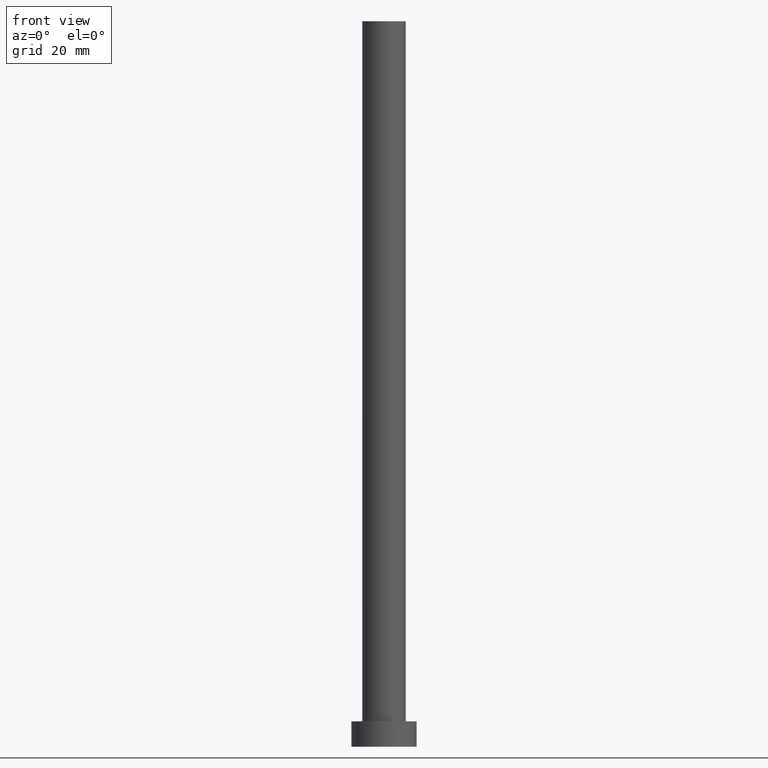
[diagram: clean part render]
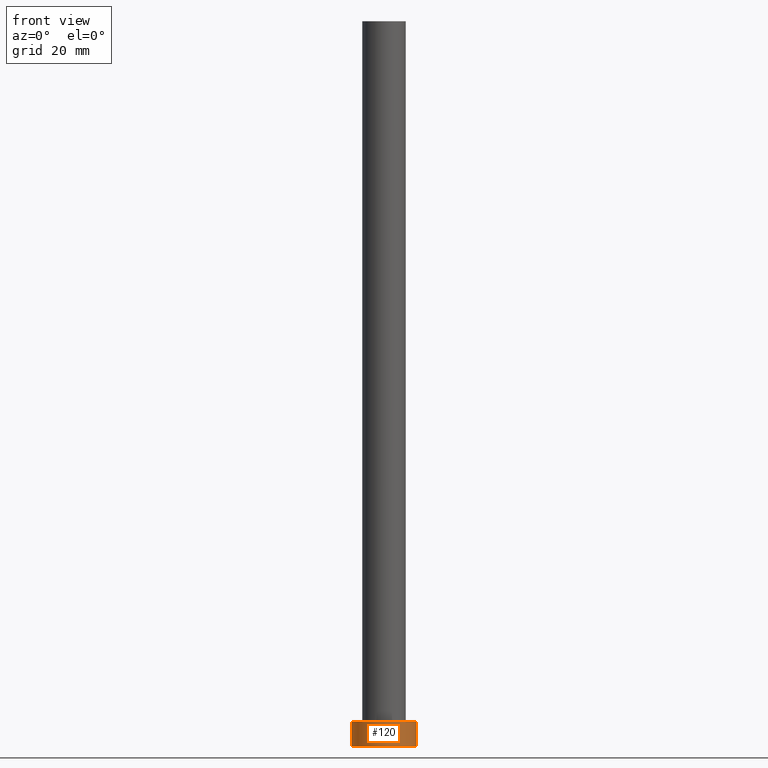
[diagram: same view with one face highlighted and labeled with its STEP entity id]
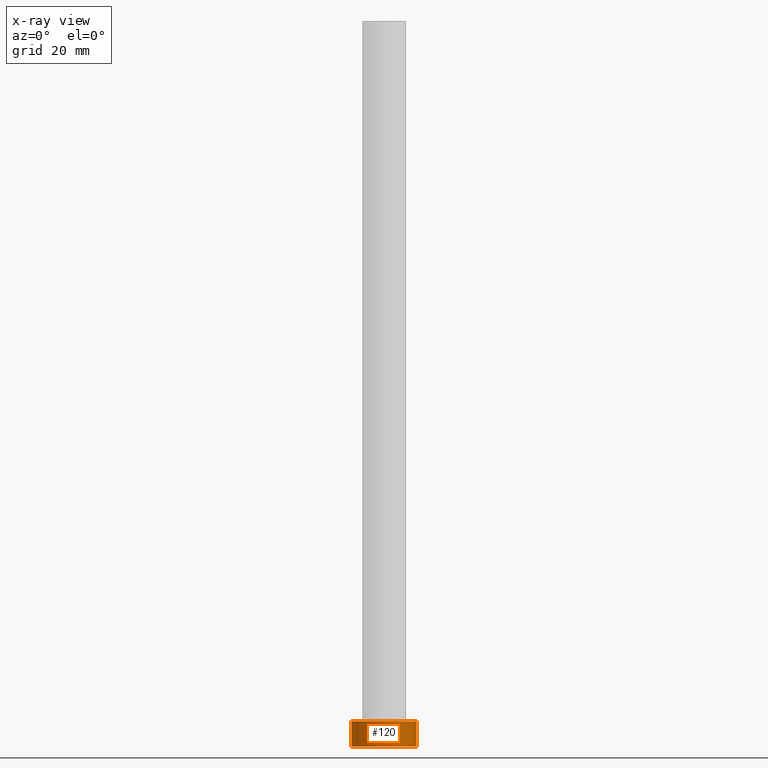
[diagram: x-ray of the same camera — body ghosted, the highlighted face saturated]
A machine part, front view. The second image highlights one B-rep face of the part: STEP entity #120.
The next image is the same camera in x-ray: the body ghosted, the highlighted face saturated — about 0% of this face is hidden behind the body in this view.
In plain terms, the highlighted cylindrical surface (edge-blend (fillet) strip) has radius 9 mm, axis along (-0, -0, -1).
Its self-contained STEP definition (entity closure, byte-faithful):
#26 = AXIS2_PLACEMENT_3D ( 'NONE', #236, #89, #237 ) ;
#27 = EDGE_CURVE ( 'NONE', #211, #83, #106, .T. ) ;
#35 = CARTESIAN_POINT ( 'NONE',  ( -9.000000000000000000, 0.000000000000000000, 7.000000000000000000 ) ) ;
#53 = ORIENTED_EDGE ( 'NONE', *, *, #190, .T. ) ;
#55 = AXIS2_PLACEMENT_3D ( 'NONE', #207, #246, #162 ) ;
#56 = CARTESIAN_POINT ( 'NONE',  ( -9.000000000000000000, 0.000000000000000000, 7.000000000000000000 ) ) ;
#60 = FACE_OUTER_BOUND ( 'NONE', #200, .T. ) ;
#68 = CARTESIAN_POINT ( 'NONE',  ( 9.000000000000000000, 1.102182119232617714E-15, 7.000000000000000000 ) ) ;
#69 = EDGE_CURVE ( 'NONE', #83, #222, #88, .T. ) ;
#71 = ORIENTED_EDGE ( 'NONE', *, *, #27, .F. ) ;
#83 = VERTEX_POINT ( 'NONE', #68 ) ;
#86 = CARTESIAN_POINT ( 'NONE',  ( 9.000000000000000000, 1.102182119232617714E-15, 7.000000000000000000 ) ) ;
#88 = LINE ( 'NONE', #86, #192 ) ;
#89 = DIRECTION ( 'NONE',  ( 0.000000000000000000, 0.000000000000000000, 1.000000000000000000 ) ) ;
#106 = CIRCLE ( 'NONE', #26, 9.000000000000000000 ) ;
#108 = CIRCLE ( 'NONE', #219, 9.000000000000000000 ) ;
#110 = DIRECTION ( 'NONE',  ( 1.000000000000000000, 0.000000000000000000, 0.000000000000000000 ) ) ;
#120 = ADVANCED_FACE ( 'NONE', ( #60 ), #159, .T. ) ;
#122 = VECTOR ( 'NONE', #141, 1000.000000000000000 ) ;
#126 = CARTESIAN_POINT ( 'NONE',  ( 0.000000000000000000, 0.000000000000000000, 0.000000000000000000 ) ) ;
#141 = DIRECTION ( 'NONE',  ( -0.000000000000000000, -0.000000000000000000, -1.000000000000000000 ) ) ;
#143 = LINE ( 'NONE', #35, #122 ) ;
#159 = CYLINDRICAL_SURFACE ( 'NONE', #55, 9.000000000000000000 ) ;
#162 = DIRECTION ( 'NONE',  ( -1.000000000000000000, 0.000000000000000000, 0.000000000000000000 ) ) ;
#168 = ORIENTED_EDGE ( 'NONE', *, *, #252, .T. ) ;
#190 = EDGE_CURVE ( 'NONE', #211, #202, #143, .T. ) ;
#191 = DIRECTION ( 'NONE',  ( -0.000000000000000000, -0.000000000000000000, -1.000000000000000000 ) ) ;
#192 = VECTOR ( 'NONE', #191, 1000.000000000000000 ) ;
#196 = CARTESIAN_POINT ( 'NONE',  ( 9.000000000000000000, 1.102182119232617714E-15, 0.000000000000000000 ) ) ;
#200 = EDGE_LOOP ( 'NONE', ( #247, #71, #53, #168 ) ) ;
#202 = VERTEX_POINT ( 'NONE', #244 ) ;
#207 = CARTESIAN_POINT ( 'NONE',  ( 0.000000000000000000, 0.000000000000000000, 7.000000000000000000 ) ) ;
#211 = VERTEX_POINT ( 'NONE', #56 ) ;
#219 = AXIS2_PLACEMENT_3D ( 'NONE', #126, #248, #110 ) ;
#222 = VERTEX_POINT ( 'NONE', #196 ) ;
#236 = CARTESIAN_POINT ( 'NONE',  ( 0.000000000000000000, 0.000000000000000000, 7.000000000000000000 ) ) ;
#237 = DIRECTION ( 'NONE',  ( 1.000000000000000000, 0.000000000000000000, 0.000000000000000000 ) ) ;
#244 = CARTESIAN_POINT ( 'NONE',  ( -9.000000000000000000, 0.000000000000000000, 0.000000000000000000 ) ) ;
#246 = DIRECTION ( 'NONE',  ( -0.000000000000000000, -0.000000000000000000, -1.000000000000000000 ) ) ;
#247 = ORIENTED_EDGE ( 'NONE', *, *, #69, .F. ) ;
#248 = DIRECTION ( 'NONE',  ( 0.000000000000000000, 0.000000000000000000, 1.000000000000000000 ) ) ;
#252 = EDGE_CURVE ( 'NONE', #202, #222, #108, .T. ) ;